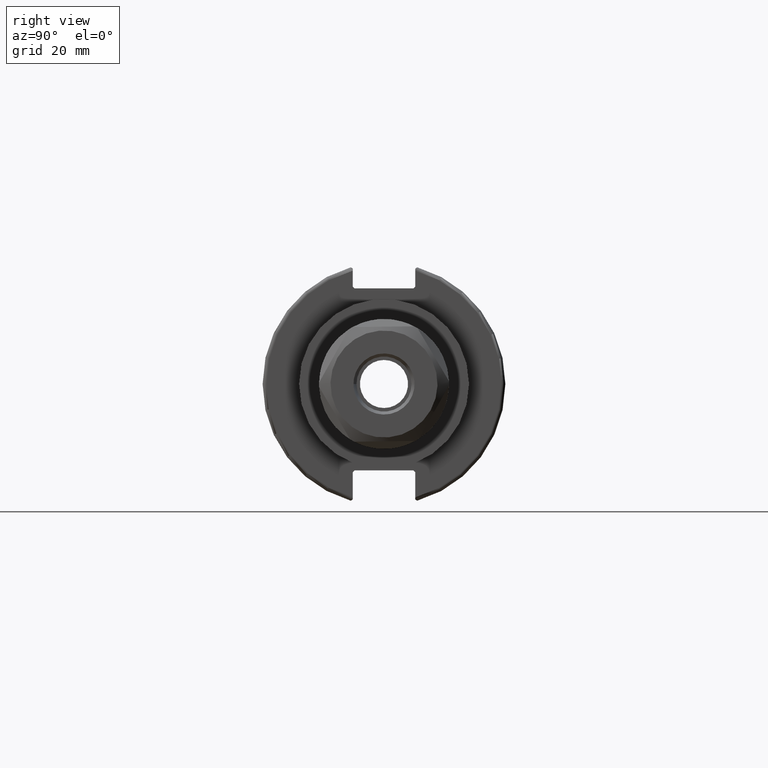
[diagram: clean part render]
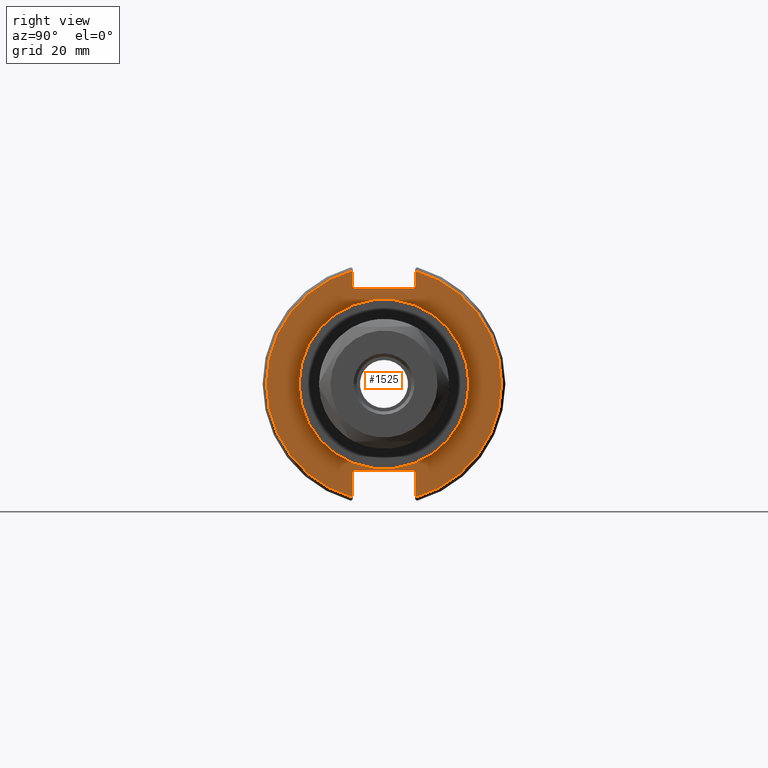
[diagram: same view with one face highlighted and labeled with its STEP entity id]
A machine part, right view. The second image highlights one B-rep face of the part: STEP entity #1525.
In plain terms, the highlighted planar face has unit normal (1, 0, 0).
Its self-contained STEP definition (entity closure, byte-faithful):
#119=FACE_BOUND('',#310,.T.);
#137=PLANE('',#1716);
#212=FACE_OUTER_BOUND('',#309,.T.);
#309=EDGE_LOOP('',(#1131,#1132,#1133,#1134,#1135,#1136,#1137,#1138,#1139,
#1140,#1141,#1142));
#310=EDGE_LOOP('',(#1143));
#415=LINE('',#2452,#515);
#421=LINE('',#2478,#521);
#422=LINE('',#2480,#522);
#423=LINE('',#2482,#523);
#424=LINE('',#2484,#524);
#425=LINE('',#2486,#525);
#426=LINE('',#2490,#526);
#427=LINE('',#2492,#527);
#428=LINE('',#2494,#528);
#429=LINE('',#2495,#529);
#515=VECTOR('',#1964,10.);
#521=VECTOR('',#1972,10.);
#522=VECTOR('',#1973,10.);
#523=VECTOR('',#1974,10.);
#524=VECTOR('',#1975,10.);
#525=VECTOR('',#1976,10.);
#526=VECTOR('',#1979,10.);
#527=VECTOR('',#1980,10.);
#528=VECTOR('',#1981,10.);
#529=VECTOR('',#1982,10.);
#602=CIRCLE('',#1689,22.225);
#615=CIRCLE('',#1712,30.75);
#617=CIRCLE('',#1717,30.75);
#679=VERTEX_POINT('',#2346);
#702=VERTEX_POINT('',#2407);
#703=VERTEX_POINT('',#2414);
#709=VERTEX_POINT('',#2451);
#716=VERTEX_POINT('',#2477);
#717=VERTEX_POINT('',#2479);
#718=VERTEX_POINT('',#2481);
#719=VERTEX_POINT('',#2483);
#720=VERTEX_POINT('',#2485);
#721=VERTEX_POINT('',#2487);
#722=VERTEX_POINT('',#2489);
#723=VERTEX_POINT('',#2491);
#724=VERTEX_POINT('',#2493);
#832=EDGE_CURVE('',#679,#679,#602,.T.);
#860=EDGE_CURVE('',#702,#703,#615,.T.);
#868=EDGE_CURVE('',#709,#703,#415,.T.);
#877=EDGE_CURVE('',#702,#716,#421,.T.);
#878=EDGE_CURVE('',#717,#716,#422,.T.);
#879=EDGE_CURVE('',#717,#718,#423,.T.);
#880=EDGE_CURVE('',#719,#718,#424,.T.);
#881=EDGE_CURVE('',#719,#720,#425,.T.);
#882=EDGE_CURVE('',#721,#720,#617,.T.);
#883=EDGE_CURVE('',#721,#722,#426,.T.);
#884=EDGE_CURVE('',#723,#722,#427,.T.);
#885=EDGE_CURVE('',#723,#724,#428,.T.);
#886=EDGE_CURVE('',#709,#724,#429,.T.);
#1131=ORIENTED_EDGE('',*,*,#860,.F.);
#1132=ORIENTED_EDGE('',*,*,#877,.T.);
#1133=ORIENTED_EDGE('',*,*,#878,.F.);
#1134=ORIENTED_EDGE('',*,*,#879,.T.);
#1135=ORIENTED_EDGE('',*,*,#880,.F.);
#1136=ORIENTED_EDGE('',*,*,#881,.T.);
#1137=ORIENTED_EDGE('',*,*,#882,.F.);
#1138=ORIENTED_EDGE('',*,*,#883,.T.);
#1139=ORIENTED_EDGE('',*,*,#884,.F.);
#1140=ORIENTED_EDGE('',*,*,#885,.T.);
#1141=ORIENTED_EDGE('',*,*,#886,.F.);
#1142=ORIENTED_EDGE('',*,*,#868,.T.);
#1143=ORIENTED_EDGE('',*,*,#832,.T.);
#1525=ADVANCED_FACE('',(#212,#119),#137,.T.);
#1689=AXIS2_PLACEMENT_3D('',#2348,#1894,#1895);
#1712=AXIS2_PLACEMENT_3D('',#2415,#1954,#1955);
#1716=AXIS2_PLACEMENT_3D('',#2476,#1970,#1971);
#1717=AXIS2_PLACEMENT_3D('',#2488,#1977,#1978);
#1894=DIRECTION('center_axis',(-1.,0.,0.));
#1895=DIRECTION('ref_axis',(0.,1.,0.));
#1954=DIRECTION('center_axis',(-1.,0.,0.));
#1955=DIRECTION('ref_axis',(0.,1.,-6.12323399573677E-17));
#1964=DIRECTION('',(0.,0.,-1.));
#1970=DIRECTION('center_axis',(1.,0.,0.));
#1971=DIRECTION('ref_axis',(0.,0.,-1.));
#1972=DIRECTION('',(0.,0.,-1.));
#1973=DIRECTION('',(0.,0.707106781186549,0.707106781186546));
#1974=DIRECTION('',(0.,-1.,0.));
#1975=DIRECTION('',(0.,0.70710678118655,-0.707106781186545));
#1976=DIRECTION('',(0.,0.,1.));
#1977=DIRECTION('center_axis',(-1.,0.,0.));
#1978=DIRECTION('ref_axis',(0.,-1.,1.60812264967664E-16));
#1979=DIRECTION('',(0.,0.,1.));
#1980=DIRECTION('',(0.,-0.707106781186549,-0.707106781186546));
#1981=DIRECTION('',(0.,1.,0.));
#1982=DIRECTION('',(0.,-0.707106781186549,0.707106781186546));
#2346=CARTESIAN_POINT('',(19.05,-22.225,-2.72177751110499E-15));
#2348=CARTESIAN_POINT('Origin',(19.05,0.,0.));
#2407=CARTESIAN_POINT('',(19.05,8.19,29.6392712461019));
#2414=CARTESIAN_POINT('',(19.05,8.19,-29.6392712461019));
#2415=CARTESIAN_POINT('Origin',(19.05,0.,0.));
#2451=CARTESIAN_POINT('',(19.05,8.19,-23.1));
#2452=CARTESIAN_POINT('',(19.05,8.19,-11.3));
#2476=CARTESIAN_POINT('Origin',(19.05,0.,0.));
#2477=CARTESIAN_POINT('',(19.05,8.19,25.5));
#2478=CARTESIAN_POINT('',(19.05,8.19,12.5));
#2479=CARTESIAN_POINT('',(19.05,7.69,25.));
#2480=CARTESIAN_POINT('',(19.05,-0.35750000000001,16.9525));
#2481=CARTESIAN_POINT('',(19.05,-7.69,25.));
#2482=CARTESIAN_POINT('',(19.05,0.,25.));
#2483=CARTESIAN_POINT('',(19.05,-8.19,25.5));
#2484=CARTESIAN_POINT('',(19.05,0.357500000000014,16.9525));
#2485=CARTESIAN_POINT('',(19.05,-8.19,29.6392712461019));
#2486=CARTESIAN_POINT('',(19.05,-8.19,12.5));
#2487=CARTESIAN_POINT('',(19.05,-8.19,-29.6392712461019));
#2488=CARTESIAN_POINT('Origin',(19.05,0.,0.));
#2489=CARTESIAN_POINT('',(19.05,-8.19,-23.1));
#2490=CARTESIAN_POINT('',(19.05,-8.19,-11.3));
#2491=CARTESIAN_POINT('',(19.05,-7.69,-22.6));
#2492=CARTESIAN_POINT('',(19.05,-0.242499999999991,-15.1525));
#2493=CARTESIAN_POINT('',(19.05,7.69,-22.6));
#2494=CARTESIAN_POINT('',(19.05,-2.77555756156289E-16,-22.6));
#2495=CARTESIAN_POINT('',(19.05,0.242499999999989,-15.1525));